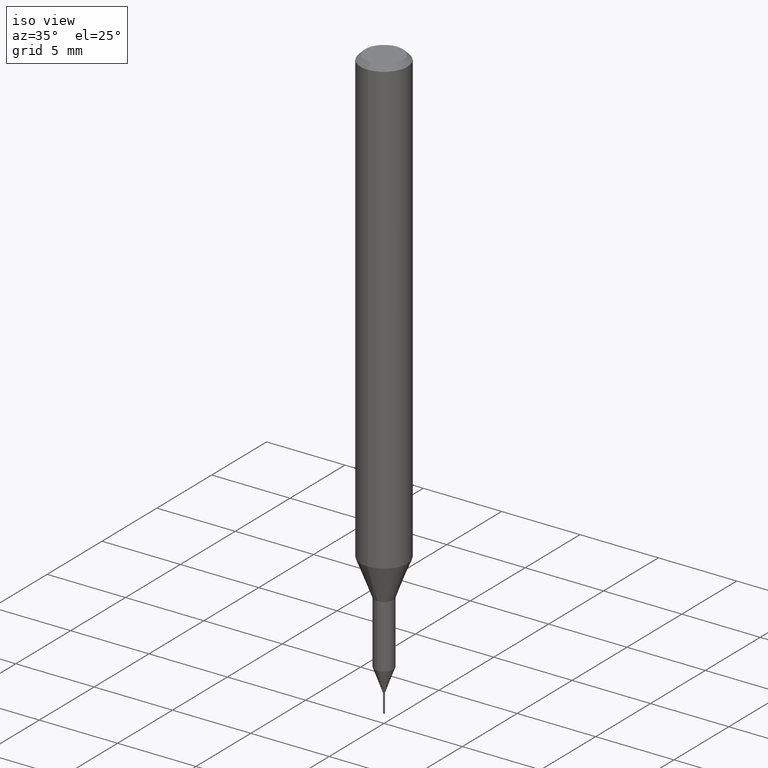
[diagram: clean part render]
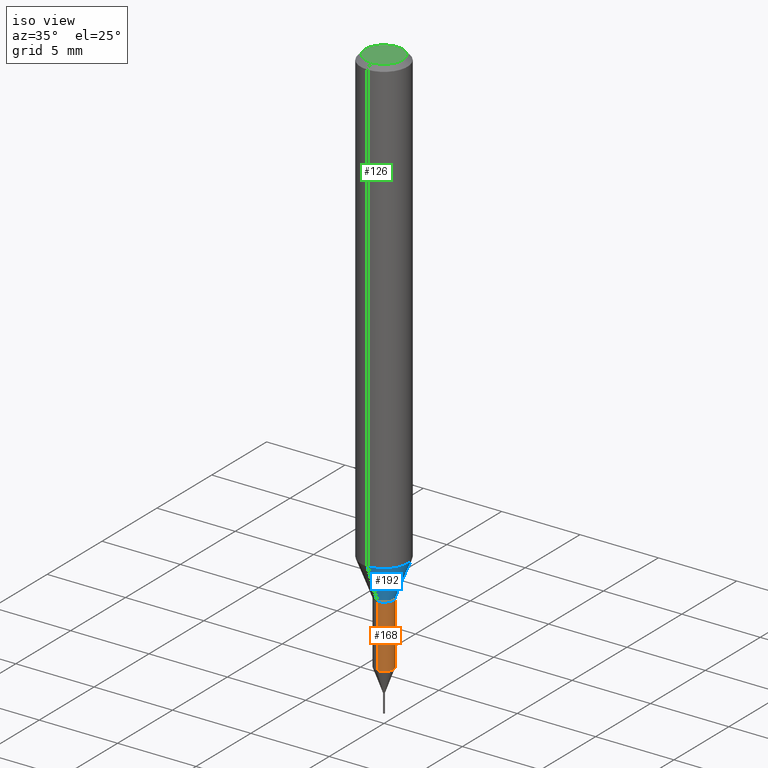
[diagram: same view with three faces highlighted in distinct colors, each labeled with its STEP entity id]
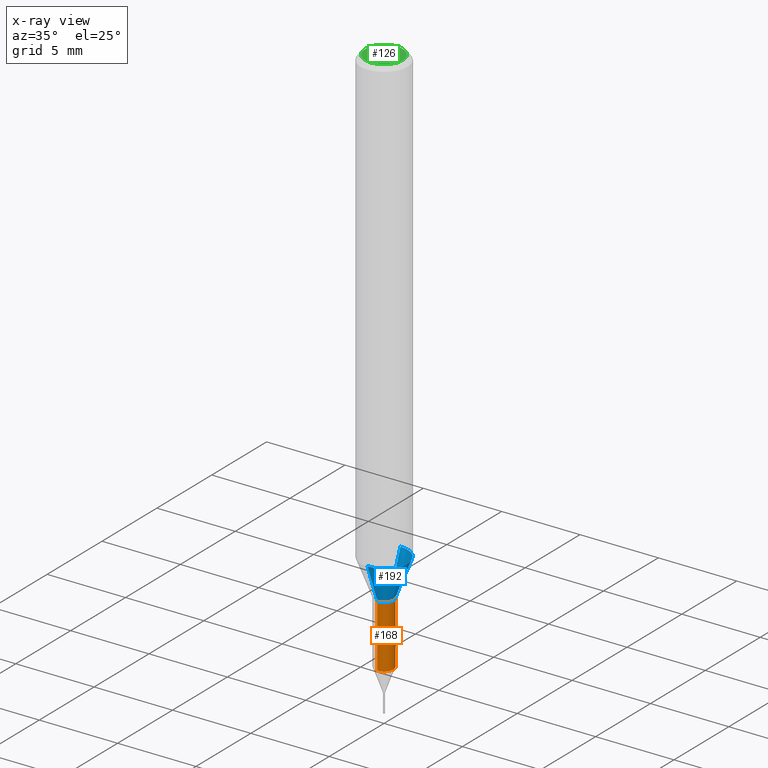
[diagram: x-ray of the same camera — body ghosted, the three highlighted faces saturated]
A machine part, iso view with three faces highlighted in distinct colors.
The next image is the same camera in x-ray (body ghosted, the three faces saturated) — at least one of them is partly hidden behind the body in this view.
Their STEP definitions:

[orange] entity #168 — the highlighted cylindrical surface (edge-blend (fillet) strip) has radius 0.5999 mm, axis along (-0, -0, 1).
#152=EDGE_CURVE('',#238,#246,#335,.T.);
#156=VERTEX_POINT('',#340);
#168=ADVANCED_FACE('',(#353),#354,.T.);
#178=EDGE_CURVE('',#248,#238,#365,.T.);
#228=EDGE_CURVE('',#246,#156,#421,.T.);
#234=EDGE_CURVE('',#248,#156,#427,.T.);
#238=VERTEX_POINT('',#431);
#246=VERTEX_POINT('',#441);
#248=VERTEX_POINT('',#443);
#335=CIRCLE('',#541,0.59995);
#340=CARTESIAN_POINT('',(7.34702581975735E-017,-0.59995,-31.3));
#353=FACE_OUTER_BOUND('',#562,.T.);
#354=CYLINDRICAL_SURFACE('',#563,0.59995);
#365=LINE('',#577,#578);
#421=LINE('',#650,#651);
#427=CIRCLE('',#660,0.59995);
#431=CARTESIAN_POINT('',(0.0,0.59995,-35.303));
#441=CARTESIAN_POINT('',(7.34702581975735E-017,-0.59995,-35.303));
#443=CARTESIAN_POINT('',(0.0,0.59995,-31.3));
#541=AXIS2_PLACEMENT_3D('',#765,#766,#767);
#562=EDGE_LOOP('',(#792,#793,#794,#795));
#563=AXIS2_PLACEMENT_3D('',#796,#797,#798);
#577=CARTESIAN_POINT('',(-7.34702581975735E-017,0.59995,-33.3015));
#578=VECTOR('',#808,1.0);
#650=CARTESIAN_POINT('',(7.34702581975735E-017,-0.59995,-33.3015));
#651=VECTOR('',#880,1.0);
#660=AXIS2_PLACEMENT_3D('',#882,#883,#884);
#765=CARTESIAN_POINT('',(0.0,0.0,-35.303));
#766=DIRECTION('',(0.0,0.0,-1.0));
#767=DIRECTION('',(0.0,1.0,0.0));
#792=ORIENTED_EDGE('',*,*,#178,.F.);
#793=ORIENTED_EDGE('',*,*,#234,.T.);
#794=ORIENTED_EDGE('',*,*,#228,.F.);
#795=ORIENTED_EDGE('',*,*,#152,.F.);
#796=CARTESIAN_POINT('',(0.0,0.0,-33.3015));
#797=DIRECTION('',(-0.0,-0.0,1.0));
#798=DIRECTION('',(0.0,1.0,0.0));
#808=DIRECTION('',(0.0,0.0,-1.0));
#880=DIRECTION('',(-0.0,-0.0,1.0));
#882=CARTESIAN_POINT('',(0.0,0.0,-31.3));
#883=DIRECTION('',(0.0,0.0,-1.0));
#884=DIRECTION('',(0.0,1.0,0.0));

[blue] entity #192 — the highlighted conical surface has half-angle 20.997 deg.
#120=EDGE_CURVE('',#172,#214,#297,.T.);
#130=EDGE_CURVE('',#268,#214,#309,.T.);
#172=VERTEX_POINT('',#359);
#192=ADVANCED_FACE('',(#381),#382,.T.);
#206=VERTEX_POINT('',#398);
#214=VERTEX_POINT('',#406);
#242=EDGE_CURVE('',#172,#206,#436,.T.);
#254=EDGE_CURVE('',#206,#268,#450,.T.);
#268=VERTEX_POINT('',#466);
#297=CIRCLE('',#492,1.5);
#309=LINE('',#508,#509);
#359=CARTESIAN_POINT('',(0.0,1.5,-28.955));
#381=FACE_OUTER_BOUND('',#598,.T.);
#382=CONICAL_SURFACE('',#599,1.05,0.366459241971866);
#398=CARTESIAN_POINT('',(0.0,0.6,-31.3));
#406=CARTESIAN_POINT('',(1.83690953073357E-016,-1.5,-28.955));
#436=LINE('',#670,#671);
#450=CIRCLE('',#687,0.6);
#466=CARTESIAN_POINT('',(7.34763812293426E-017,-0.6,-31.3));
#492=AXIS2_PLACEMENT_3D('',#714,#715,#716);
#508=CARTESIAN_POINT('',(1.2858366715135E-016,-1.05,-30.1275));
#509=VECTOR('',#735,1.0);
#598=EDGE_LOOP('',(#832,#833,#834,#835));
#599=AXIS2_PLACEMENT_3D('',#836,#837,#838);
#670=CARTESIAN_POINT('',(-1.2858366715135E-016,1.05,-30.1275));
#671=VECTOR('',#893,1.0);
#687=AXIS2_PLACEMENT_3D('',#912,#913,#914);
#714=CARTESIAN_POINT('',(0.0,0.0,-28.955));
#715=DIRECTION('',(0.0,0.0,-1.0));
#716=DIRECTION('',(0.0,1.0,0.0));
#735=DIRECTION('',(4.38791184365088E-017,-0.358312026550805,0.93360189140182));
#832=ORIENTED_EDGE('',*,*,#242,.F.);
#833=ORIENTED_EDGE('',*,*,#120,.T.);
#834=ORIENTED_EDGE('',*,*,#130,.F.);
#835=ORIENTED_EDGE('',*,*,#254,.F.);
#836=CARTESIAN_POINT('',(0.0,0.0,-30.1275));
#837=DIRECTION('',(-0.0,-0.0,1.0));
#838=DIRECTION('',(0.0,1.0,0.0));
#893=DIRECTION('',(4.38791184365088E-017,-0.358312026550805,-0.93360189140182));
#912=CARTESIAN_POINT('',(0.0,0.0,-31.3));
#913=DIRECTION('',(0.0,0.0,-1.0));
#914=DIRECTION('',(0.0,1.0,0.0));

[green] entity #126 — the highlighted planar face has unit normal (-0, 0, 1).
#126=ADVANCED_FACE('',(#304),#305,.T.);
#160=VERTEX_POINT('',#345);
#186=EDGE_CURVE('',#160,#208,#375,.T.);
#194=EDGE_CURVE('',#208,#160,#384,.T.);
#208=VERTEX_POINT('',#400);
#304=FACE_OUTER_BOUND('',#500,.T.);
#305=PLANE('',#501);
#345=CARTESIAN_POINT('',(0.0,1.2,0.0));
#375=CIRCLE('',#589,1.2);
#384=CIRCLE('',#602,1.2);
#400=CARTESIAN_POINT('',(1.46952762458685E-016,-1.2,0.0));
#500=EDGE_LOOP('',(#729,#730));
#501=AXIS2_PLACEMENT_3D('',#731,#732,#733);
#589=AXIS2_PLACEMENT_3D('',#824,#825,#826);
#602=AXIS2_PLACEMENT_3D('',#839,#840,#841);
#729=ORIENTED_EDGE('',*,*,#186,.F.);
#730=ORIENTED_EDGE('',*,*,#194,.F.);
#731=CARTESIAN_POINT('',(0.0,0.6,0.0));
#732=DIRECTION('',(-0.0,0.0,1.0));
#733=DIRECTION('',(0.0,-1.0,0.0));
#824=CARTESIAN_POINT('',(0.0,0.0,0.0));
#825=DIRECTION('',(0.0,0.0,-1.0));
#826=DIRECTION('',(0.0,1.0,0.0));
#839=CARTESIAN_POINT('',(0.0,0.0,0.0));
#840=DIRECTION('',(0.0,0.0,-1.0));
#841=DIRECTION('',(0.0,1.0,0.0));